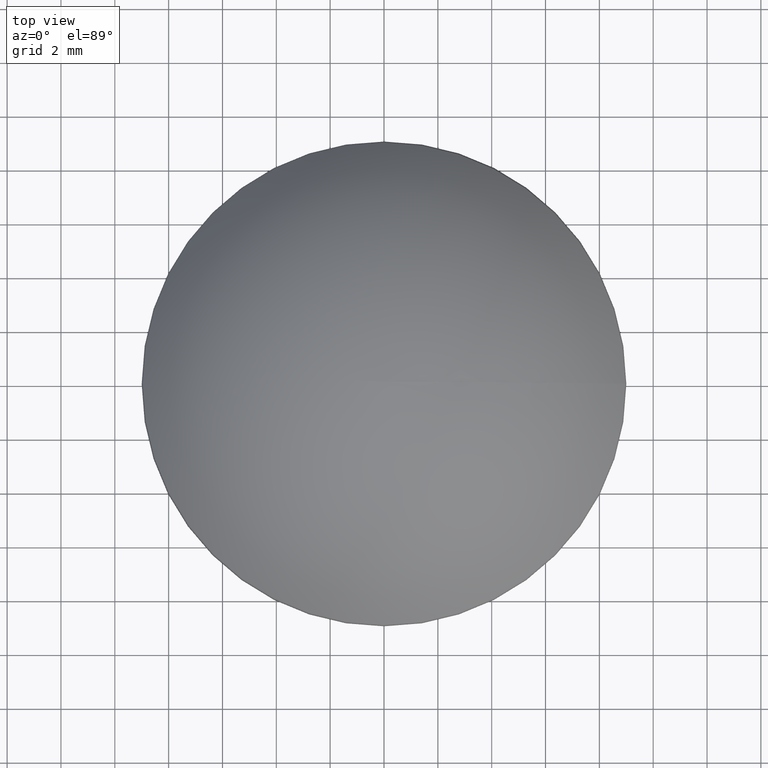
[diagram: clean part render]
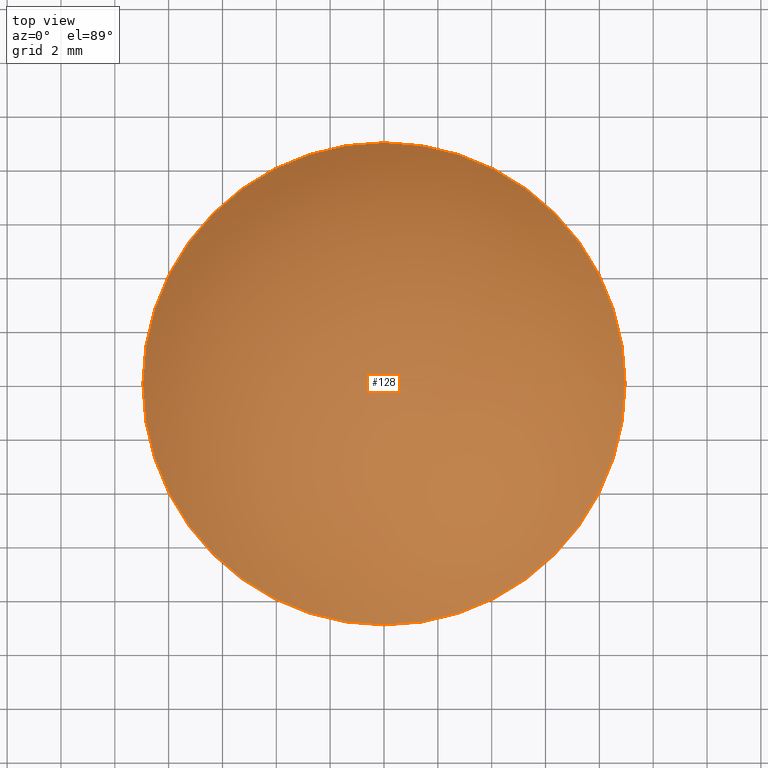
[diagram: same view with one face highlighted and labeled with its STEP entity id]
A machine part, top view. The second image highlights one B-rep face of the part: STEP entity #128.
In plain terms, the highlighted spherical surface has radius 11.5 mm.
Its self-contained STEP definition (entity closure, byte-faithful):
#19=SPHERICAL_SURFACE('',#145,11.5);
#35=FACE_OUTER_BOUND('',#49,.T.);
#49=EDGE_LOOP('',(#104));
#68=CIRCLE('',#142,8.95567978584934);
#79=VERTEX_POINT('',#215);
#90=EDGE_CURVE('',#79,#79,#68,.T.);
#104=ORIENTED_EDGE('',*,*,#90,.F.);
#128=ADVANCED_FACE('',(#35),#19,.T.);
#142=AXIS2_PLACEMENT_3D('',#216,#169,#170);
#145=AXIS2_PLACEMENT_3D('',#220,#175,#176);
#169=DIRECTION('center_axis',(0.,0.,-1.));
#170=DIRECTION('ref_axis',(1.,6.12323399573677E-17,0.));
#175=DIRECTION('center_axis',(6.12323399573677E-17,0.,1.));
#176=DIRECTION('ref_axis',(1.,0.,0.));
#215=CARTESIAN_POINT('',(-8.95567978584934,5.48377229196452E-16,7.21427748103229));
#216=CARTESIAN_POINT('Origin',(0.,0.,7.21427748103229));
#220=CARTESIAN_POINT('Origin',(0.,0.,0.));